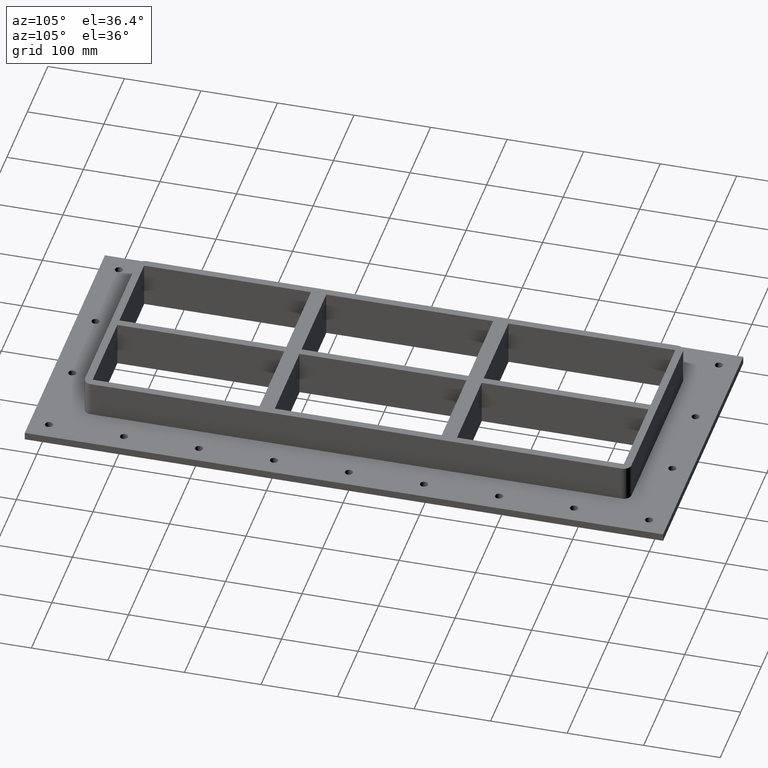
[diagram: clean part render]
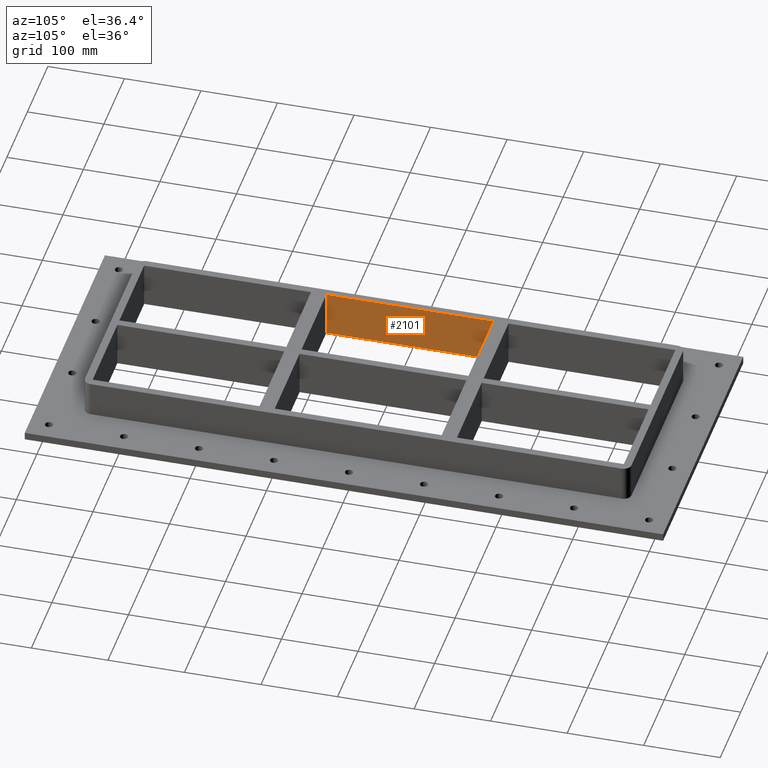
[diagram: same view with one face highlighted and labeled with its STEP entity id]
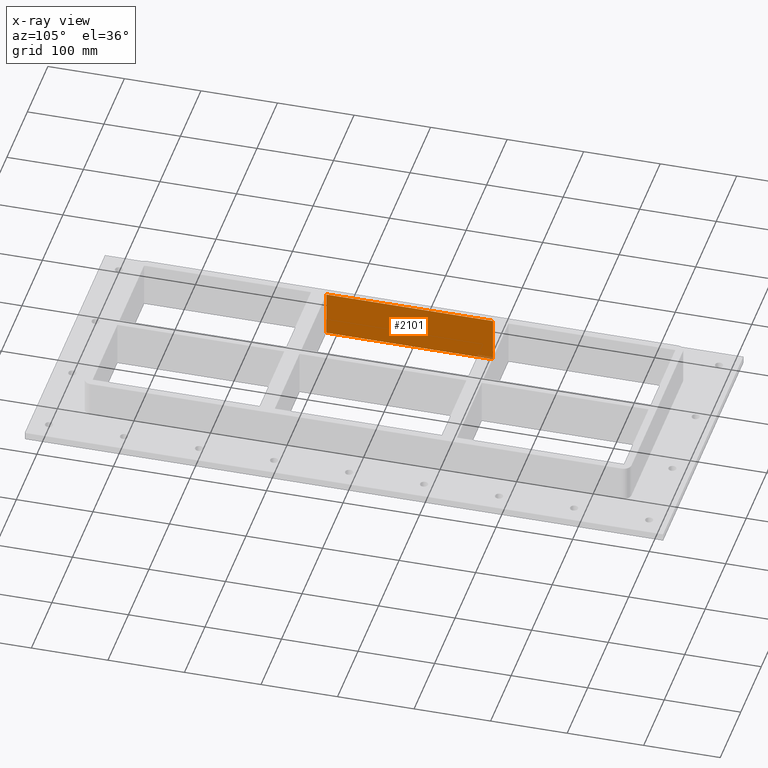
[diagram: x-ray of the same camera — body ghosted, the highlighted face saturated]
A machine part, auxiliary view. The second image highlights one B-rep face of the part: STEP entity #2101.
The next image is the same camera in x-ray: the body ghosted, the highlighted face saturated — about 1% of this face is hidden behind the body in this view.
In plain terms, the highlighted planar face has unit normal (-1, 0, 0).
Its self-contained STEP definition (entity closure, byte-faithful):
#1510=CARTESIAN_POINT('',(-125.5,109.00000000000013,-30.0));
#1511=VERTEX_POINT('',#1510);
#1512=CARTESIAN_POINT('',(-125.49999999999996,-108.99999999999989,-30.0));
#1513=VERTEX_POINT('',#1512);
#1514=CARTESIAN_POINT('',(-125.50000000000001,109.00000000000011,-30.0));
#1515=DIRECTION('',(0.0,-1.0,0.0));
#1516=VECTOR('',#1515,218.0);
#1517=LINE('',#1514,#1516);
#1518=EDGE_CURVE('',#1511,#1513,#1517,.T.);
#2071=CARTESIAN_POINT('',(-125.49999999999996,-108.99999999999989,30.0));
#2072=DIRECTION('',(-1.0,0.0,0.0));
#2073=DIRECTION('',(0.0,1.0,0.0));
#2074=AXIS2_PLACEMENT_3D('',#2071,#2072,#2073);
#2075=PLANE('',#2074);
#2076=ORIENTED_EDGE('',*,*,#1518,.F.);
#2077=CARTESIAN_POINT('',(-125.5,109.00000000000013,30.0));
#2078=VERTEX_POINT('',#2077);
#2079=CARTESIAN_POINT('',(-125.5,109.00000000000013,30.0));
#2080=DIRECTION('',(0.0,0.0,-1.0));
#2081=VECTOR('',#2080,60.0);
#2082=LINE('',#2079,#2081);
#2083=EDGE_CURVE('',#2078,#1511,#2082,.T.);
#2084=ORIENTED_EDGE('',*,*,#2083,.F.);
#2085=CARTESIAN_POINT('',(-125.49999999999996,-108.99999999999989,30.0));
#2086=VERTEX_POINT('',#2085);
#2087=CARTESIAN_POINT('',(-125.49999999999996,-108.99999999999989,30.0));
#2088=DIRECTION('',(0.0,1.0,0.0));
#2089=VECTOR('',#2088,218.0);
#2090=LINE('',#2087,#2089);
#2091=EDGE_CURVE('',#2086,#2078,#2090,.T.);
#2092=ORIENTED_EDGE('',*,*,#2091,.F.);
#2093=CARTESIAN_POINT('',(-125.49999999999996,-108.99999999999989,30.0));
#2094=DIRECTION('',(0.0,0.0,-1.0));
#2095=VECTOR('',#2094,60.0);
#2096=LINE('',#2093,#2095);
#2097=EDGE_CURVE('',#2086,#1513,#2096,.T.);
#2098=ORIENTED_EDGE('',*,*,#2097,.T.);
#2099=EDGE_LOOP('',(#2076,#2084,#2092,#2098));
#2100=FACE_OUTER_BOUND('',#2099,.T.);
#2101=ADVANCED_FACE('',(#2100),#2075,.F.);